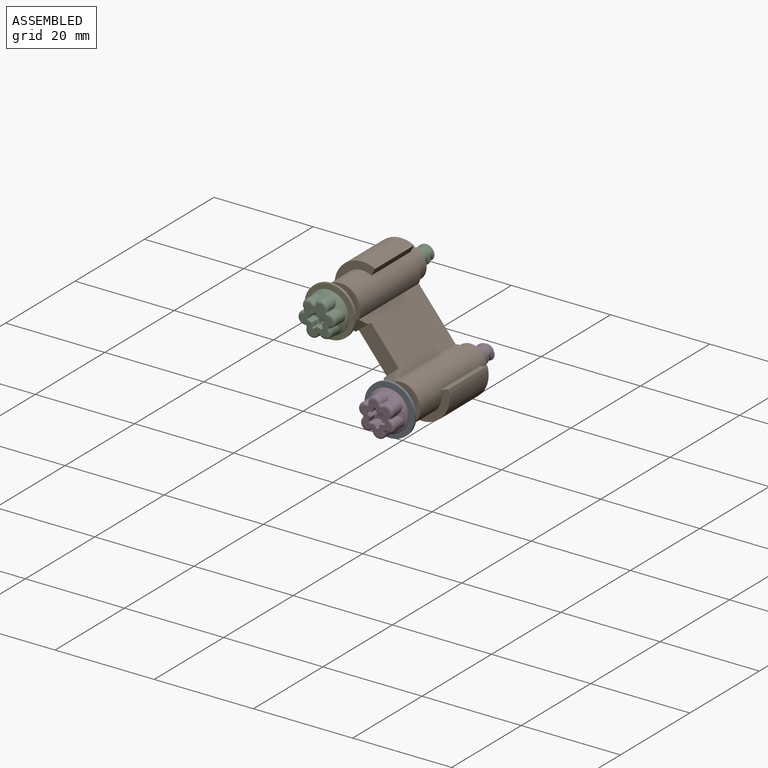
[diagram: assembled view]
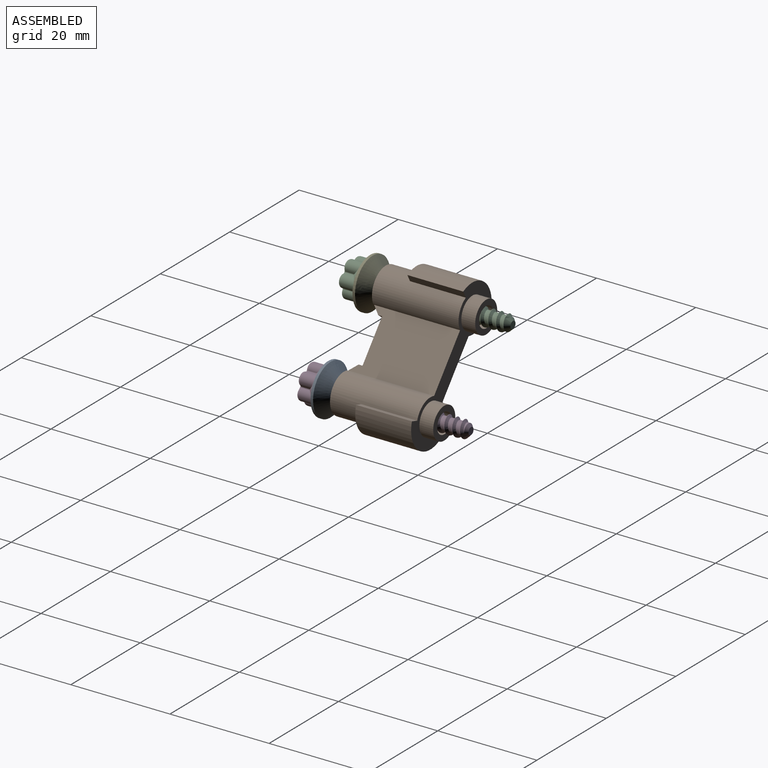
[diagram: assembled view, second angle]
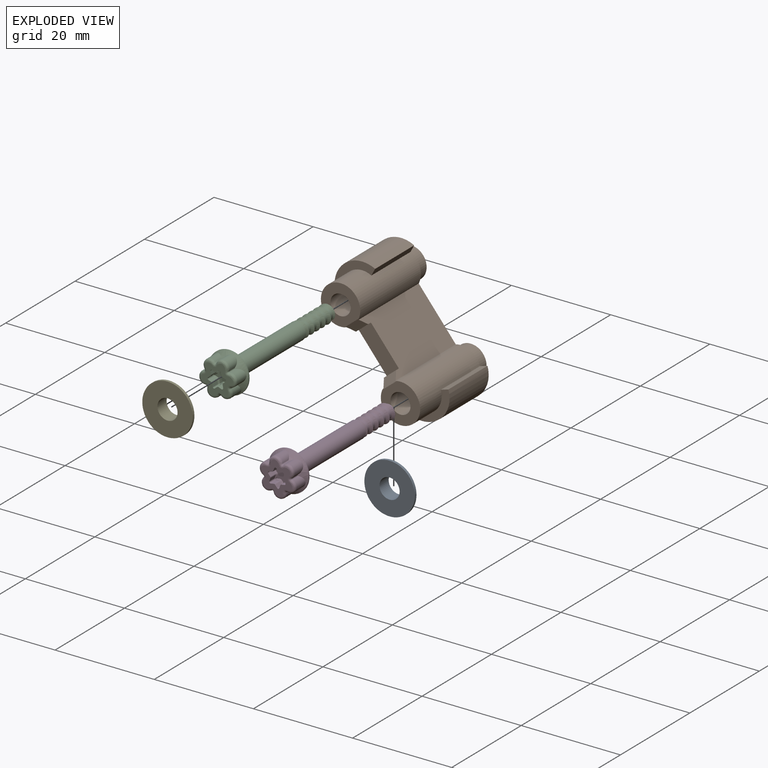
[diagram: exploded view]
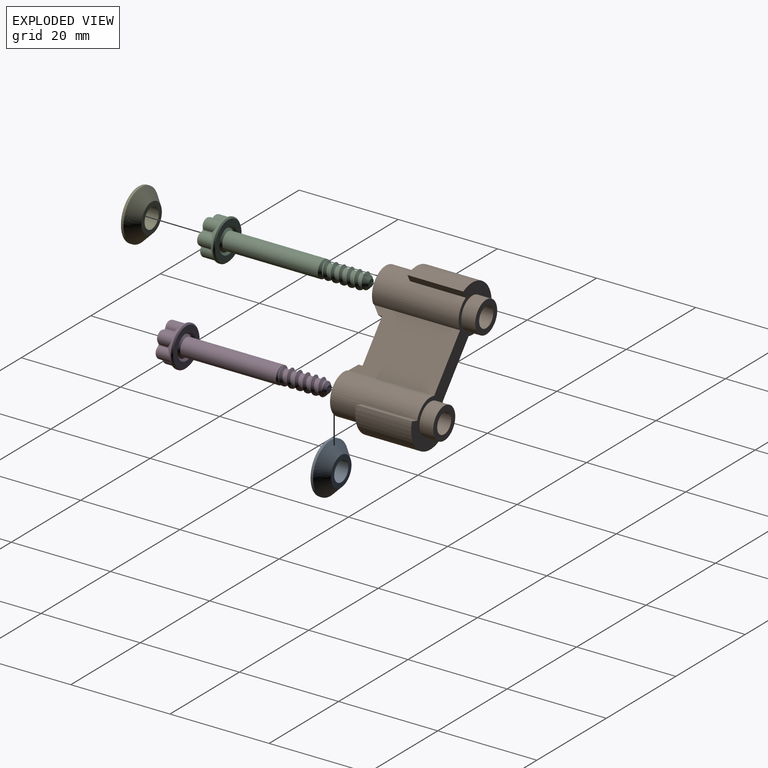
[diagram: exploded view, second angle]
ASSEMBLY  parts=5 mates=4
PART A: 8 faces, bbox 10.3x2.8x10.4 mm
  f0: cylinder r=5.08mm len=10.16mm, axis (0,-1,0), area 8.1mm2, adj f1,f2,f3
  f1: cylinder r=5.08mm len=10.16mm, axis (0,-1,0), area 8.1mm2, adj f0,f2,f4
  f2: plane 10.22x10.16mm, normal (0,-1,0), area 68.1mm2, adj f0,f1,f5,f6
  f3: bspline ~10.16x5.08mm, area 38.1mm2, adj f0,f4,f7
  f4: bspline ~10.16x5.08mm, area 38.1mm2, adj f1,f3,f7
  f5: cylinder r=2.03mm len=4.06mm, axis (0,-1,0), area 16.9mm2, adj f2,f6,f7
  f6: cylinder r=2.03mm len=4.06mm, axis (0,-1,0), area 16.9mm2, adj f2,f5,f7
  f7: plane 6.04x6.04mm, normal (0,1,0), area 14.3mm2, adj f3,f4,f5,f6
PART B: 32 faces, bbox 30.2x20.3x10.3 mm
  f0: cylinder r=5.56mm len=11.27mm, axis (0,-1,0), area 147.5mm2, adj f1,f2,f3,f4
  f1: plane 11.27x1.47mm, normal (-0.92,0,0.38), area 17.9mm2, adj f0,f2,f4,f5
  f2: plane 10.27x4.06mm, normal (0,-1,0), area 17.8mm2, adj f0,f1,f3,f5,f6
  f3: plane 11.27x1.47mm, normal (-0.92,0,-0.38), area 17.9mm2, adj f0,f2,f4,f6
  f4: plane 30.21x10.27mm, normal (0,1,0), area 107.2mm2, adj f0,f1,f3,f5,f6,f7,f8,f9
  f5: cylinder r=3.97mm len=17.46mm, axis (0,-1,0), area 136.5mm2, adj f1,f2,f4,f6,f13,f18,f19
  f6: cylinder r=3.97mm len=17.46mm, axis (0,-1,0), area 136.5mm2, adj f2,f3,f4,f5,f7,f18,f19
  f7: plane 17.32x11.78mm, normal (0,0,-1), area 182mm2, adj f4,f6,f8,f18,f20,f21,f22,f23
  f8: cylinder r=3.97mm len=17.46mm, axis (0,-1,0), area 136.5mm2, adj f4,f7,f9,f12,f23,f24,f25
  f9: plane 11.27x1.47mm, normal (0.92,0,-0.38), area 17.9mm2, adj f4,f8,f10,f24
  f10: cylinder r=5.56mm len=11.27mm, axis (0,-1,0), area 147.5mm2, adj f4,f9,f11,f24
  f11: plane 11.27x1.47mm, normal (0.92,0,0.38), area 17.9mm2, adj f4,f10,f12,f24
  f12: cylinder r=3.97mm len=17.46mm, axis (0,-1,0), area 136.5mm2, adj f4,f8,f11,f13,f23,f24,f25
  f13: plane 17.32x11.78mm, normal (0,0,1), area 182mm2, adj f4,f5,f12,f18,f20,f21,f22,f23
  f14: cylinder r=3.17mm len=6.35mm, axis (0,1,0), area 27.9mm2, adj f4,f15,f26
  f15: cylinder r=3.17mm len=6.35mm, axis (0,1,0), area 27.9mm2, adj f4,f14,f26
  f16: cylinder r=3.17mm len=6.35mm, axis (0,1,0), area 27.9mm2, adj f4,f17,f27
  f17: cylinder r=3.17mm len=6.35mm, axis (0,1,0), area 27.9mm2, adj f4,f16,f27
  f18: plane 3.78x1.59mm, normal (-0.71,-0.71,0), area 7.2mm2, adj f5,f6,f7,f13,f19,f20
  f19: plane 7.97x7.46mm, normal (0,-1,0), area 35.3mm2, adj f5,f6,f18,f28,f29
  f20: plane 3.18x0.79mm, normal (-1,0,0), area 2.5mm2, adj f7,f13,f18,f21
  f21: plane 8.89x3.18mm, normal (0,-1,0), area 28.2mm2, adj f7,f13,f20,f22
  f22: plane 3.18x0.79mm, normal (1,0,0), area 2.5mm2, adj f7,f13,f21,f23
  f23: plane 3.78x1.59mm, normal (0.71,-0.71,0), area 7.2mm2, adj f7,f8,f12,f13,f22,f25
  f24: plane 10.27x4.06mm, normal (0,-1,0), area 17.8mm2, adj f8,f9,f10,f11,f12
  f25: plane 7.97x7.46mm, normal (0,-1,0), area 35.3mm2, adj f8,f12,f23,f30,f31
  f26: plane 6.4x6.35mm, normal (0,1,0), area 18.7mm2, adj f14,f15,f30,f31
  f27: plane 6.4x6.35mm, normal (0,1,0), area 18.7mm2, adj f16,f17,f28,f29
  f28: cylinder r=2.03mm len=20.26mm, axis (0,-1,0), area 129.3mm2, adj f19,f27,f29
  f29: cylinder r=2.03mm len=20.26mm, axis (0,-1,0), area 129.3mm2, adj f19,f27,f28
  f30: cylinder r=2.03mm len=20.26mm, axis (0,-1,0), area 129.3mm2, adj f25,f26,f31
  f31: cylinder r=2.03mm len=20.26mm, axis (0,-1,0), area 129.3mm2, adj f25,f26,f30
PART C: 117 faces, bbox 8.4x33x8.4 mm
  f0: bspline ~4.3x2.15mm, area 3.4mm2, adj f1,f2,f3
  f1: bspline ~4.3x2.15mm, area 3.4mm2, adj f0,f4,f5
  f2: bspline ~5.09x2.55mm, area 4.1mm2, adj f0,f5,f6
  f3: cylinder r=1.75mm len=19.28mm, axis (0,-1,0), area 106.1mm2, adj f0,f4,f7
  f4: cylinder r=1.75mm len=19.28mm, axis (0,-1,0), area 106.1mm2, adj f1,f3,f8
  f5: bspline ~5.09x2.55mm, area 4.1mm2, adj f1,f2,f6
  f6: plane 7.82x7.81mm, normal (0,-1,0), area 25.2mm2, adj f2,f5,f9,f10
  f7: bspline ~3.51x1.75mm, area 3.2mm2, adj f3,f8,f11,f12
  f8: bspline ~3.51x1.75mm, area 1.5mm2, adj f4,f7,f12,f13,f14,f15
  f9: bspline ~8.13x4.06mm, area 4.4mm2, adj f6,f10,f16
  f10: bspline ~8.13x4.06mm, area 4.4mm2, adj f6,f9,f17
  f11: cylinder r=1.27mm len=2.29mm, axis (0,-1,0), area 1mm2, adj f7,f12,f15
  f12: bspline ~9.83x3.79mm, area 31.4mm2, adj f7,f8,f11,f13,f15,f18,f19,f20
  f13: cylinder r=1.71mm len=3.42mm, axis (0,-1,0), area 0.3mm2, adj f8,f12,f14,f27
  f14: bspline ~8.95x3.42mm, area 31.4mm2, adj f8,f13,f15,f18,f19,f20,f21,f22
  f15: cylinder r=1.27mm len=2.54mm, axis (0,-1,0), area 2.6mm2, adj f8,f11,f12,f14,f28
  f16: cylinder r=4.06mm len=8.13mm, axis (0,1,0), area 3.2mm2, adj f9,f17,f40
  f17: cylinder r=4.06mm len=8.13mm, axis (0,1,0), area 3.2mm2, adj f10,f16,f41
  f18: cylinder r=1.71mm len=3.14mm, axis (0,-1,0), area 0.3mm2, adj f12,f14,f19,f38
  f19: cylinder r=1.71mm len=3.42mm, axis (0,-1,0), area 0.3mm2, adj f12,f14,f18,f20
  f20: cylinder r=1.71mm len=3.42mm, axis (0,-1,0), area 0.3mm2, adj f12,f14,f19,f21
  f21: cylinder r=1.71mm len=3.42mm, axis (0,-1,0), area 0.3mm2, adj f12,f14,f20,f22
  f22: cylinder r=1.71mm len=3.42mm, axis (0,-1,0), area 0.3mm2, adj f12,f14,f21,f23
  f23: cylinder r=1.71mm len=3.42mm, axis (0,-1,0), area 0.3mm2, adj f12,f14,f22,f24
  f24: cylinder r=1.71mm len=3.42mm, axis (0,-1,0), area 0.3mm2, adj f12,f14,f23,f25
  f25: cylinder r=1.71mm len=3.42mm, axis (0,-1,0), area 0.3mm2, adj f12,f14,f24,f26
  f26: cylinder r=1.71mm len=3.42mm, axis (0,-1,0), area 0.3mm2, adj f12,f14,f25,f27
  f27: cylinder r=1.71mm len=3.42mm, axis (0,-1,0), area 0.3mm2, adj f12,f13,f14,f26
  f28: cylinder r=1.27mm len=2.54mm, axis (0,-1,0), area 2.6mm2, adj f12,f14,f15,f29
  f29: cylinder r=1.27mm len=2.54mm, axis (0,-1,0), area 2.6mm2, adj f12,f14,f28,f30
  f30: cylinder r=1.27mm len=2.54mm, axis (0,-1,0), area 2.6mm2, adj f12,f14,f29,f31
  f31: cylinder r=1.27mm len=2.54mm, axis (0,-1,0), area 2.6mm2, adj f12,f14,f30,f32
  f32: cylinder r=1.27mm len=2.54mm, axis (0,-1,0), area 2.6mm2, adj f12,f14,f31,f33
  f33: cylinder r=1.27mm len=2.54mm, axis (0,-1,0), area 2.6mm2, adj f12,f14,f32,f34
  f34: cylinder r=1.27mm len=2.54mm, axis (0,-1,0), area 2.6mm2, adj f12,f14,f33,f35
  f35: cylinder r=1.27mm len=2.54mm, axis (0,-1,0), area 2.6mm2, adj f12,f14,f34,f36
  f36: cylinder r=1.27mm len=2.54mm, axis (0,-1,0), area 2.6mm2, adj f12,f14,f35,f38,f39
  f37: bspline ~3.63x2.41mm, area 3.6mm2, adj f12,f38,f42
  f38: bspline ~3.74x2.49mm, area 2.9mm2, adj f12,f14,f18,f36,f37,f39,f42
  f39: cylinder r=1.27mm len=2.12mm, axis (0,-1,0), area 0.9mm2, adj f14,f36,f38
  f40: bspline ~8.13x4.06mm, area 10mm2, adj f16,f41,f43,f44,f45,f46,f47,f48
  f41: bspline ~8.13x4.06mm, area 10mm2, adj f17,f40,f43,f49,f50,f51,f52,f53
  f42: plane 1.52x1.52mm, normal (0,-1,0), area 1.7mm2, adj f37,f38
  f43: cylinder r=0.19mm len=1.71mm, axis (0,1,0), area 0.6mm2, adj f40,f41,f44,f54,f55
  f44: cylinder r=1.31mm len=2.63mm, axis (0,1,0), area 9.2mm2, adj f40,f43,f45,f56
  f45: cylinder r=0.19mm len=1.71mm, axis (0,1,0), area 0.6mm2, adj f40,f44,f46,f57
  f46: cylinder r=1.31mm len=2.63mm, axis (0,1,0), area 9.2mm2, adj f40,f45,f47,f58
  f47: cylinder r=0.19mm len=1.71mm, axis (0,1,0), area 0.6mm2, adj f40,f46,f48,f59
  f48: cylinder r=1.31mm len=2.63mm, axis (0,1,0), area 9.2mm2, adj f40,f47,f49,f60
  f49: cylinder r=0.19mm len=1.71mm, axis (0,1,0), area 0.6mm2, adj f40,f41,f48,f50,f61
  f50: cylinder r=1.31mm len=2.63mm, axis (0,1,0), area 9.2mm2, adj f41,f49,f51,f62
  f51: cylinder r=0.19mm len=1.71mm, axis (0,1,0), area 0.6mm2, adj f41,f50,f52,f63
  f52: cylinder r=1.31mm len=2.63mm, axis (0,1,0), area 9.2mm2, adj f41,f51,f53,f64
  f53: cylinder r=0.19mm len=1.71mm, axis (0,1,0), area 0.6mm2, adj f41,f52,f54,f65
  f54: cylinder r=1.31mm len=2.63mm, axis (0,1,0), area 9.2mm2, adj f41,f43,f53,f66
  f55: bspline ~1.17x0.59mm, area 0.6mm2, adj f43,f56,f66,f67
  f56: bspline ~2.82x2.34mm, area 2.7mm2, adj f44,f55,f57,f67
  f57: bspline ~1.01x0.78mm, area 0.6mm2, adj f45,f56,f58,f67
  f58: bspline ~2.61x1.26mm, area 2.7mm2, adj f46,f57,f59,f67
  f59: bspline ~1.01x0.78mm, area 0.6mm2, adj f47,f58,f60,f67
  f60: bspline ~2.82x2.34mm, area 2.7mm2, adj f48,f59,f61,f67
  f61: bspline ~1.17x0.59mm, area 0.6mm2, adj f49,f60,f62,f67
  f62: bspline ~2.82x2.34mm, area 2.7mm2, adj f50,f61,f63,f67
  f63: bspline ~1.01x0.78mm, area 0.6mm2, adj f51,f62,f64,f67
  f64: bspline ~2.61x1.26mm, area 2.7mm2, adj f52,f63,f65,f67
  f65: bspline ~1.01x0.78mm, area 0.6mm2, adj f53,f64,f66,f67
  f66: bspline ~2.82x2.34mm, area 2.7mm2, adj f54,f55,f65,f67
  f67: plane 6.65x5.98mm, normal (0,1,0), area 17.7mm2, adj f55,f56,f57,f58,f59,f60,f61,f62
  f68: cylinder r=0.25mm len=1.5mm, axis (0,-1,0), area 0.8mm2, adj f67,f69,f91,f92
  f69: plane 1.5x0.56mm, normal (0.87,0,0.5), area 1mm2, adj f67,f68,f70,f93
  f70: cylinder r=0.25mm len=1.5mm, axis (0,-1,0), area 0.4mm2, adj f67,f69,f71,f94
  f71: plane 1.5x0.56mm, normal (0.87,0,-0.5), area 1mm2, adj f67,f70,f72,f95
  f72: cylinder r=0.25mm len=1.5mm, axis (0,-1,0), area 0.8mm2, adj f67,f71,f73,f96
  f73: plane 1.5x0.65mm, normal (0,0,1), area 1mm2, adj f67,f72,f74,f97
  f74: cylinder r=0.25mm len=1.5mm, axis (0,-1,0), area 0.4mm2, adj f67,f73,f75,f98
  f75: plane 1.5x0.56mm, normal (0.87,0,0.5), area 1mm2, adj f67,f74,f76,f99
  f76: cylinder r=0.25mm len=1.5mm, axis (0,-1,0), area 0.8mm2, adj f67,f75,f77,f100
  f77: plane 1.5x0.56mm, normal (-0.87,0,0.5), area 1mm2, adj f67,f76,f78,f101
  f78: cylinder r=0.25mm len=1.5mm, axis (0,-1,0), area 0.4mm2, adj f67,f77,f79,f102
  f79: plane 1.5x0.65mm, normal (0,0,1), area 1mm2, adj f67,f78,f80,f103
  f80: cylinder r=0.25mm len=1.5mm, axis (0,-1,0), area 0.8mm2, adj f67,f79,f81,f104
  f81: plane 1.5x0.56mm, normal (-0.87,0,-0.5), area 1mm2, adj f67,f80,f82,f105
  f82: cylinder r=0.25mm len=1.5mm, axis (0,-1,0), area 0.4mm2, adj f67,f81,f83,f106
  f83: plane 1.5x0.56mm, normal (-0.87,0,0.5), area 1mm2, adj f67,f82,f84,f107
  f84: cylinder r=0.25mm len=1.5mm, axis (0,-1,0), area 0.8mm2, adj f67,f83,f85,f108
  f85: plane 1.5x0.65mm, normal (0,0,-1), area 1mm2, adj f67,f84,f86,f109
  f86: cylinder r=0.25mm len=1.5mm, axis (0,-1,0), area 0.4mm2, adj f67,f85,f87,f110
  f87: plane 1.5x0.56mm, normal (-0.87,0,-0.5), area 1mm2, adj f67,f86,f88,f111
  f88: cylinder r=0.25mm len=1.5mm, axis (0,-1,0), area 0.8mm2, adj f67,f87,f89,f112
  f89: plane 1.5x0.56mm, normal (0.87,0,-0.5), area 1mm2, adj f67,f88,f90,f113
  f90: cylinder r=0.25mm len=1.5mm, axis (0,-1,0), area 0.4mm2, adj f67,f89,f91,f114
  f91: plane 1.5x0.65mm, normal (0,0,-1), area 1mm2, adj f67,f68,f90,f115
  f92: bspline ~0.38x0.29mm, area 0.1mm2, adj f68,f93,f115
  f93: plane 0.69x0.54mm, normal (0.61,0.71,0.35), area 0.2mm2, adj f69,f92,f94,f116
  f94: bspline ~0.51x0.37mm, area 0.1mm2, adj f70,f93,f95,f116
  f95: plane 0.94x0.8mm, normal (0.61,0.71,-0.35), area 0.2mm2, adj f71,f94,f96,f116
  f96: bspline ~0.38x0.29mm, area 0.1mm2, adj f72,f95,f97
  f97: plane 0.65x0.25mm, normal (0,0.71,0.71), area 0.2mm2, adj f73,f96,f98,f116
  f98: bspline ~0.44x0.38mm, area 0.1mm2, adj f74,f97,f99,f116
  f99: plane 0.94x0.8mm, normal (0.61,0.71,0.35), area 0.2mm2, adj f75,f98,f100,f116
  f100: bspline ~0.44x0.25mm, area 0.1mm2, adj f76,f99,f101
  f101: plane 0.69x0.54mm, normal (-0.61,0.71,0.35), area 0.2mm2, adj f77,f100,f102,f116
  f102: bspline ~0.44x0.38mm, area 0.1mm2, adj f78,f101,f103,f116
  f103: plane 0.9x0.51mm, normal (0,0.71,0.71), area 0.2mm2, adj f79,f102,f104,f116
  f104: bspline ~0.38x0.29mm, area 0.1mm2, adj f80,f103,f105
  f105: plane 0.69x0.54mm, normal (-0.61,0.71,-0.35), area 0.2mm2, adj f81,f104,f106,f116
  f106: bspline ~0.51x0.37mm, area 0.1mm2, adj f82,f105,f107,f116
  f107: plane 0.94x0.8mm, normal (-0.61,0.71,0.35), area 0.2mm2, adj f83,f106,f108,f116
  f108: bspline ~0.38x0.29mm, area 0.1mm2, adj f84,f107,f109
  f109: plane 0.65x0.25mm, normal (0,0.71,-0.71), area 0.2mm2, adj f85,f108,f110,f116
  f110: bspline ~0.44x0.38mm, area 0.1mm2, adj f86,f109,f111,f116
  f111: plane 0.94x0.8mm, normal (-0.61,0.71,-0.35), area 0.2mm2, adj f87,f110,f112,f116
  f112: bspline ~0.44x0.25mm, area 0.1mm2, adj f88,f111,f113
  f113: plane 0.69x0.54mm, normal (0.61,0.71,-0.35), area 0.2mm2, adj f89,f112,f114,f116
  f114: bspline ~0.44x0.38mm, area 0.1mm2, adj f90,f113,f115,f116
  f115: plane 0.9x0.51mm, normal (0,0.71,-0.71), area 0.2mm2, adj f91,f92,f114,f116
  f116: plane 3.26x2.82mm, normal (0,1,0), area 4.7mm2, adj f93,f94,f95,f97,f98,f99,f101,f102
PART D: same geometry as C
PART E: same geometry as A
PLACE A rot(axis=(0,-1,0),129.4deg) t=(-3.82,-26.52,-19.72)mm
PLACE B rot(axis=(0,1,0),50.6deg) t=(-9.86,-6.16,-12.35)mm fixed
PLACE C rot(axis=(0.94,0,0.34),180deg) t=(-15.9,-26.78,-4.99)mm
PLACE D rot(axis=(-0.9,0,0.43),180deg) t=(-3.82,-26.78,-19.72)mm
PLACE E rot(axis=(0,-1,0),39.4deg) t=(-15.9,-26.52,-4.99)mm
MATE fastened E.f0 <-> B.f30  axis (0,1,0) through (-15.9,-24.13,-4.99)mm
MATE fastened B.f5 <-> A.f6  axis (0,-1,0) through (-3.82,-23.62,-19.72)mm
MATE fastened A.f5 <-> D.f17  axis (0,-1,0) through (-3.82,-26.78,-19.72)mm
MATE fastened E.f5 <-> C.f17  axis (0,-1,0) through (-15.9,-26.78,-4.99)mm
